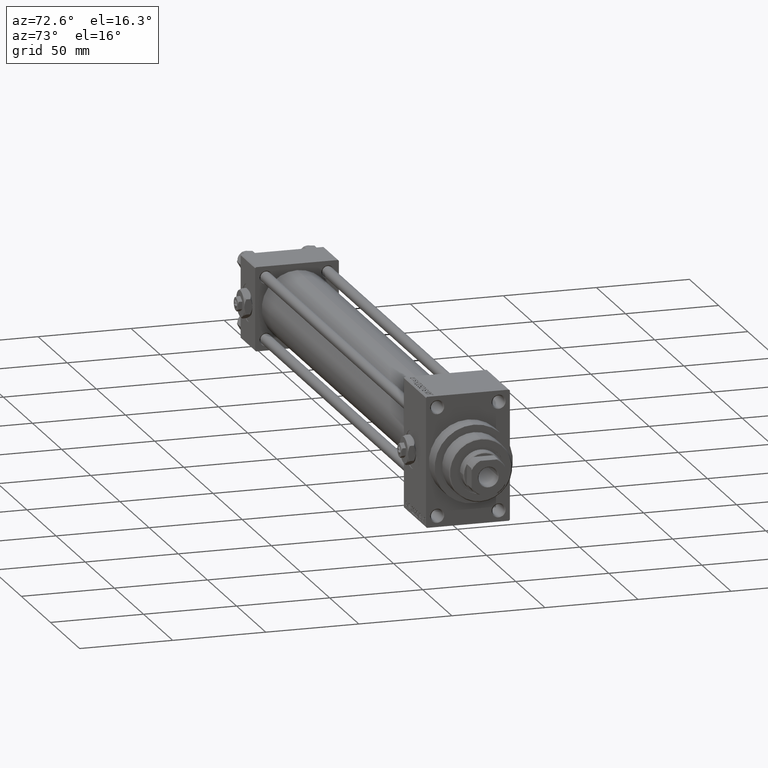
[diagram: clean part render]
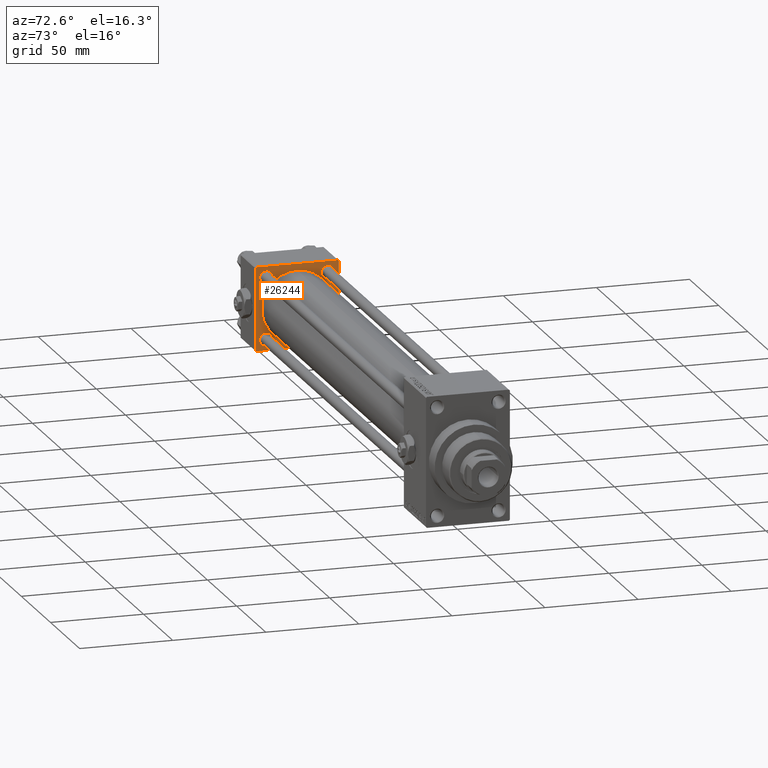
[diagram: same view with one face highlighted and labeled with its STEP entity id]
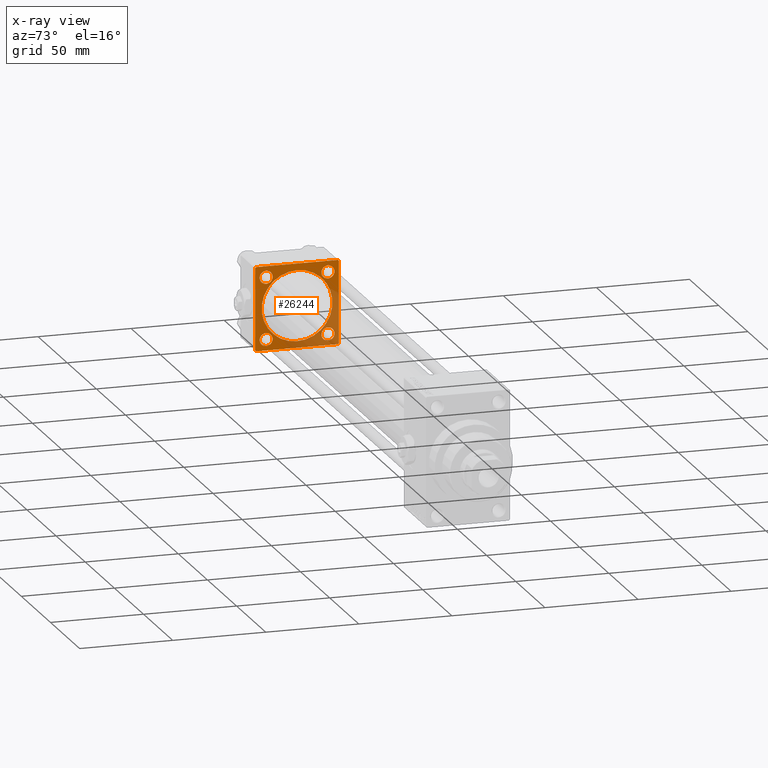
[diagram: x-ray of the same camera — body ghosted, the highlighted face saturated]
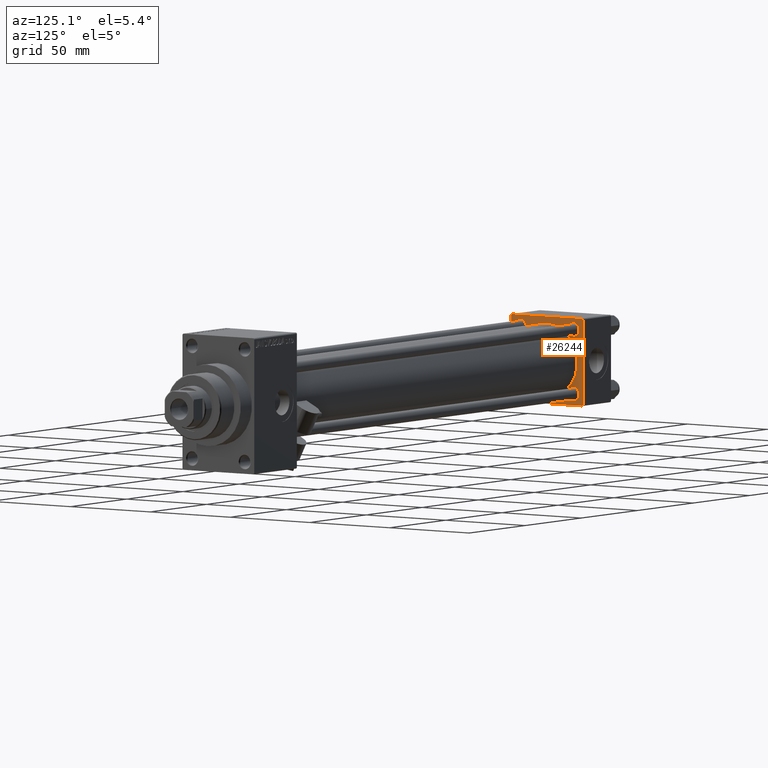
[diagram: same view with one face highlighted and labeled with its STEP entity id]
A machine part, auxiliary view. The second image highlights one B-rep face of the part: STEP entity #26244.
The next image is the same camera in x-ray: the body ghosted, the highlighted face saturated — about 31% of this face is hidden behind the body in this view.
A second angle (auxiliary view) of the same face is appended — the face is thin or edge-on in the first view.
In plain terms, the highlighted planar face has unit normal (-1, 0, 0).
Its self-contained STEP definition (entity closure, byte-faithful):
#134 = VERTEX_POINT ( 'NONE', #15946 ) ;
#157 = EDGE_CURVE ( 'NONE', #16758, #19918, #28928, .T. ) ;
#797 = VERTEX_POINT ( 'NONE', #18647 ) ;
#1250 = DIRECTION ( 'NONE',  ( -1.000000000000000000, 0.000000000000000000, -0.000000000000000000 ) ) ;
#1455 = DIRECTION ( 'NONE',  ( 0.000000000000000000, -1.000000000000000000, -7.709882115452476934E-17 ) ) ;
#1626 = EDGE_CURVE ( 'NONE', #134, #26587, #18532, .T. ) ;
#1653 = CIRCLE ( 'NONE', #40473, 19.00000000000000000 ) ;
#1986 = DIRECTION ( 'NONE',  ( -0.000000000000000000, -0.7071067811865525687, -0.7071067811865425767 ) ) ;
#2018 = VERTEX_POINT ( 'NONE', #29001 ) ;
#2794 = VECTOR ( 'NONE', #35277, 1000.000000000000000 ) ;
#3738 = CIRCLE ( 'NONE', #32857, 3.500000000000031086 ) ;
#3916 = DIRECTION ( 'NONE',  ( 0.000000000000000000, 0.000000000000000000, 1.000000000000000000 ) ) ;
#4302 = LINE ( 'NONE', #39487, #5395 ) ;
#4399 = LINE ( 'NONE', #19854, #2794 ) ;
#4921 = VECTOR ( 'NONE', #49488, 1000.000000000000000 ) ;
#5048 = VECTOR ( 'NONE', #27723, 1000.000000000000114 ) ;
#5395 = VECTOR ( 'NONE', #34693, 1000.000000000000000 ) ;
#5439 = ORIENTED_EDGE ( 'NONE', *, *, #157, .T. ) ;
#5827 = EDGE_CURVE ( 'NONE', #797, #24675, #30978, .T. ) ;
#6645 = FACE_BOUND ( 'NONE', #41038, .T. ) ;
#6818 = ORIENTED_EDGE ( 'NONE', *, *, #1626, .T. ) ;
#6915 = CARTESIAN_POINT ( 'NONE',  ( 25.00000000000000000, 16.59999999999999787, -16.60000000000000497 ) ) ;
#7119 = EDGE_LOOP ( 'NONE', ( #13506, #48507 ) ) ;
#7966 = ORIENTED_EDGE ( 'NONE', *, *, #20743, .T. ) ;
#8174 = DIRECTION ( 'NONE',  ( -1.000000000000000000, 0.000000000000000000, -0.000000000000000000 ) ) ;
#8878 = VERTEX_POINT ( 'NONE', #36213 ) ;
#8882 = VERTEX_POINT ( 'NONE', #9399 ) ;
#9399 = CARTESIAN_POINT ( 'NONE',  ( 25.00000000000000000, 16.59999999999999787, -13.09999999999997300 ) ) ;
#9410 = CARTESIAN_POINT ( 'NONE',  ( 25.00000000000000000, 22.50000000000000000, -21.99999999999996803 ) ) ;
#9763 = AXIS2_PLACEMENT_3D ( 'NONE', #6915, #42104, #38300 ) ;
#9835 = VERTEX_POINT ( 'NONE', #17129 ) ;
#9936 = AXIS2_PLACEMENT_3D ( 'NONE', #49864, #14655, #45289 ) ;
#10411 = EDGE_CURVE ( 'NONE', #37010, #47408, #28146, .T. ) ;
#10438 = EDGE_CURVE ( 'NONE', #26587, #134, #17087, .T. ) ;
#10465 = DIRECTION ( 'NONE',  ( -1.000000000000000000, 0.000000000000000000, -0.000000000000000000 ) ) ;
#10597 = DIRECTION ( 'NONE',  ( 0.000000000000000000, 0.000000000000000000, 1.000000000000000000 ) ) ;
#10716 = DIRECTION ( 'NONE',  ( -0.000000000000000000, 0.000000000000000000, 1.000000000000000000 ) ) ;
#11555 = ORIENTED_EDGE ( 'NONE', *, *, #35766, .T. ) ;
#11919 = CARTESIAN_POINT ( 'NONE',  ( 25.00000000000000000, 16.59999999999999787, 16.60000000000000497 ) ) ;
#12023 = CARTESIAN_POINT ( 'NONE',  ( 25.00000000000000000, 16.59999999999999787, -16.60000000000000497 ) ) ;
#13205 = VERTEX_POINT ( 'NONE', #43540 ) ;
#13324 = ORIENTED_EDGE ( 'NONE', *, *, #17932, .F. ) ;
#13506 = ORIENTED_EDGE ( 'NONE', *, *, #36958, .T. ) ;
#13510 = EDGE_CURVE ( 'NONE', #23965, #9835, #28501, .T. ) ;
#14655 = DIRECTION ( 'NONE',  ( -1.000000000000000000, 0.000000000000000000, -0.000000000000000000 ) ) ;
#14658 = VECTOR ( 'NONE', #1455, 1000.000000000000000 ) ;
#14670 = VECTOR ( 'NONE', #31201, 1000.000000000000000 ) ;
#14748 = FACE_BOUND ( 'NONE', #7119, .T. ) ;
#14888 = CARTESIAN_POINT ( 'NONE',  ( 25.00000000000000000, 16.59999999999999787, 16.60000000000000497 ) ) ;
#15530 = VERTEX_POINT ( 'NONE', #31334 ) ;
#15764 = CARTESIAN_POINT ( 'NONE',  ( 25.00000000000000000, 16.59999999999999787, 20.10000000000003340 ) ) ;
#15946 = CARTESIAN_POINT ( 'NONE',  ( 25.00000000000000000, -16.59999999999999076, 20.09999999999998721 ) ) ;
#16288 = AXIS2_PLACEMENT_3D ( 'NONE', #27401, #8174, #23618 ) ;
#16583 = CARTESIAN_POINT ( 'NONE',  ( 25.00000000000000000, 21.99999999999999289, 22.50000000000000355 ) ) ;
#16758 = VERTEX_POINT ( 'NONE', #20144 ) ;
#16830 = AXIS2_PLACEMENT_3D ( 'NONE', #11919, #1250, #31388 ) ;
#16833 = LINE ( 'NONE', #16583, #5048 ) ;
#17087 = CIRCLE ( 'NONE', #16288, 3.499999999999978684 ) ;
#17129 = CARTESIAN_POINT ( 'NONE',  ( 25.00000000000000000, -16.59999999999999076, -20.09999999999998366 ) ) ;
#17213 = DIRECTION ( 'NONE',  ( 0.000000000000000000, 0.000000000000000000, 1.000000000000000000 ) ) ;
#17697 = LINE ( 'NONE', #36664, #19078 ) ;
#17932 = EDGE_CURVE ( 'NONE', #37010, #24675, #4399, .T. ) ;
#18532 = CIRCLE ( 'NONE', #33030, 3.499999999999978684 ) ;
#18647 = CARTESIAN_POINT ( 'NONE',  ( 25.00000000000000000, -22.50000000000000000, -21.99999999999997158 ) ) ;
#18668 = CIRCLE ( 'NONE', #9763, 3.500000000000031086 ) ;
#19078 = VECTOR ( 'NONE', #1986, 999.9999999999998863 ) ;
#19544 = CIRCLE ( 'NONE', #33277, 19.00000000000000000 ) ;
#19854 = CARTESIAN_POINT ( 'NONE',  ( 25.00000000000000000, 22.50000000000000000, -22.49999999999999645 ) ) ;
#19918 = VERTEX_POINT ( 'NONE', #15764 ) ;
#20144 = CARTESIAN_POINT ( 'NONE',  ( 25.00000000000000000, 16.59999999999999787, 13.09999999999997300 ) ) ;
#20743 = EDGE_CURVE ( 'NONE', #8882, #8878, #21538, .T. ) ;
#21513 = ORIENTED_EDGE ( 'NONE', *, *, #21731, .T. ) ;
#21538 = CIRCLE ( 'NONE', #47383, 3.500000000000031086 ) ;
#21731 = EDGE_CURVE ( 'NONE', #32546, #35042, #17697, .T. ) ;
#21835 = EDGE_CURVE ( 'NONE', #19918, #16758, #3738, .T. ) ;
#22038 = ORIENTED_EDGE ( 'NONE', *, *, #36263, .T. ) ;
#22113 = FACE_OUTER_BOUND ( 'NONE', #30064, .T. ) ;
#22377 = DIRECTION ( 'NONE',  ( 1.000000000000000000, -0.000000000000000000, 0.000000000000000000 ) ) ;
#22615 = CARTESIAN_POINT ( 'NONE',  ( 25.00000000000002132, -2.602085213965210642E-15, 0.000000000000000000 ) ) ;
#23036 = ORIENTED_EDGE ( 'NONE', *, *, #42861, .F. ) ;
#23618 = DIRECTION ( 'NONE',  ( 0.000000000000000000, 0.000000000000000000, 1.000000000000000000 ) ) ;
#23965 = VERTEX_POINT ( 'NONE', #47307 ) ;
#24048 = DIRECTION ( 'NONE',  ( 0.000000000000000000, 0.000000000000000000, 1.000000000000000000 ) ) ;
#24362 = CARTESIAN_POINT ( 'NONE',  ( 25.00000000000000000, 22.50000000000000000, -21.99999999999998224 ) ) ;
#24675 = VERTEX_POINT ( 'NONE', #30616 ) ;
#26244 = ADVANCED_FACE ( 'NONE', ( #14748, #30190, #45130, #30444, #6645, #22113 ), #26654, .F. ) ;
#26398 = EDGE_CURVE ( 'NONE', #39403, #47408, #4302, .T. ) ;
#26468 = DIRECTION ( 'NONE',  ( -1.000000000000000000, 0.000000000000000000, -0.000000000000000000 ) ) ;
#26587 = VERTEX_POINT ( 'NONE', #47351 ) ;
#26654 = PLANE ( 'NONE',  #43386 ) ;
#27252 = ORIENTED_EDGE ( 'NONE', *, *, #26398, .F. ) ;
#27401 = CARTESIAN_POINT ( 'NONE',  ( 25.00000000000000000, -16.59999999999999076, 16.60000000000000853 ) ) ;
#27723 = DIRECTION ( 'NONE',  ( 0.000000000000000000, -0.7071067811865474617, 0.7071067811865474617 ) ) ;
#28057 = LINE ( 'NONE', #32840, #14658 ) ;
#28146 = LINE ( 'NONE', #24362, #14670 ) ;
#28350 = CARTESIAN_POINT ( 'NONE',  ( 25.00000000000000000, -16.59999999999999076, -16.60000000000000853 ) ) ;
#28501 = CIRCLE ( 'NONE', #9936, 3.499999999999975131 ) ;
#28928 = CIRCLE ( 'NONE', #16830, 3.500000000000031086 ) ;
#28954 = CARTESIAN_POINT ( 'NONE',  ( 25.00000000000000000, -22.50000000000000000, 22.50000000000000000 ) ) ;
#29001 = CARTESIAN_POINT ( 'NONE',  ( 25.00000000000002132, -2.752562955852396712E-16, -19.00000000000000000 ) ) ;
#29205 = LINE ( 'NONE', #28954, #46172 ) ;
#29569 = CARTESIAN_POINT ( 'NONE',  ( 25.00000000000000000, -16.59999999999999076, 16.60000000000000853 ) ) ;
#30064 = EDGE_LOOP ( 'NONE', ( #13324, #35780, #27252, #22038, #44372, #21513, #37269, #47606 ) ) ;
#30190 = FACE_BOUND ( 'NONE', #34363, .T. ) ;
#30444 = FACE_BOUND ( 'NONE', #49309, .T. ) ;
#30616 = CARTESIAN_POINT ( 'NONE',  ( 25.00000000000000000, -21.99999999999997158, -22.50000000000000711 ) ) ;
#30978 = LINE ( 'NONE', #49743, #4921 ) ;
#31201 = DIRECTION ( 'NONE',  ( -0.000000000000000000, 0.7071067811865426878, 0.7071067811865524577 ) ) ;
#31334 = CARTESIAN_POINT ( 'NONE',  ( 25.00000000000002132, -2.602085213965210642E-15, 19.00000000000000000 ) ) ;
#31377 = CARTESIAN_POINT ( 'NONE',  ( 25.00000000000000000, -22.50000000000000000, 22.00000000000000000 ) ) ;
#31388 = DIRECTION ( 'NONE',  ( 0.000000000000000000, 0.000000000000000000, 1.000000000000000000 ) ) ;
#31419 = ORIENTED_EDGE ( 'NONE', *, *, #10438, .T. ) ;
#31955 = EDGE_LOOP ( 'NONE', ( #31419, #6818 ) ) ;
#32546 = VERTEX_POINT ( 'NONE', #42504 ) ;
#32840 = CARTESIAN_POINT ( 'NONE',  ( 25.00000000000000000, 22.50000000000000000, 22.50000000000000355 ) ) ;
#32857 = AXIS2_PLACEMENT_3D ( 'NONE', #14888, #41218, #37918 ) ;
#32885 = CARTESIAN_POINT ( 'NONE',  ( 25.00000000000000000, 21.99999999999999289, -22.49999999999999645 ) ) ;
#33030 = AXIS2_PLACEMENT_3D ( 'NONE', #29569, #40698, #37149 ) ;
#33277 = AXIS2_PLACEMENT_3D ( 'NONE', #37150, #44755, #10597 ) ;
#34363 = EDGE_LOOP ( 'NONE', ( #11555, #7966 ) ) ;
#34693 = DIRECTION ( 'NONE',  ( 0.000000000000000000, 0.000000000000000000, -1.000000000000000000 ) ) ;
#34974 = CIRCLE ( 'NONE', #41448, 3.499999999999975131 ) ;
#35042 = VERTEX_POINT ( 'NONE', #31377 ) ;
#35277 = DIRECTION ( 'NONE',  ( 0.000000000000000000, -1.000000000000000000, -2.312964634635742957E-16 ) ) ;
#35766 = EDGE_CURVE ( 'NONE', #8878, #8882, #18668, .T. ) ;
#35780 = ORIENTED_EDGE ( 'NONE', *, *, #10411, .T. ) ;
#36213 = CARTESIAN_POINT ( 'NONE',  ( 25.00000000000000000, 16.59999999999999787, -20.10000000000003340 ) ) ;
#36263 = EDGE_CURVE ( 'NONE', #39403, #13205, #16833, .T. ) ;
#36664 = CARTESIAN_POINT ( 'NONE',  ( 25.00000000000000000, -22.50000000000000000, 22.00000000000000000 ) ) ;
#36958 = EDGE_CURVE ( 'NONE', #9835, #23965, #34974, .T. ) ;
#37010 = VERTEX_POINT ( 'NONE', #32885 ) ;
#37149 = DIRECTION ( 'NONE',  ( 0.000000000000000000, 0.000000000000000000, 1.000000000000000000 ) ) ;
#37150 = CARTESIAN_POINT ( 'NONE',  ( 25.00000000000002132, -2.602085213965210642E-15, 0.000000000000000000 ) ) ;
#37269 = ORIENTED_EDGE ( 'NONE', *, *, #41540, .T. ) ;
#37918 = DIRECTION ( 'NONE',  ( 0.000000000000000000, 0.000000000000000000, 1.000000000000000000 ) ) ;
#38300 = DIRECTION ( 'NONE',  ( 0.000000000000000000, 0.000000000000000000, 1.000000000000000000 ) ) ;
#38596 = EDGE_CURVE ( 'NONE', #13205, #32546, #28057, .T. ) ;
#39403 = VERTEX_POINT ( 'NONE', #46257 ) ;
#39487 = CARTESIAN_POINT ( 'NONE',  ( 25.00000000000000000, 22.50000000000000000, 22.50000000000000355 ) ) ;
#40473 = AXIS2_PLACEMENT_3D ( 'NONE', #22615, #22377, #24048 ) ;
#40698 = DIRECTION ( 'NONE',  ( -1.000000000000000000, 0.000000000000000000, -0.000000000000000000 ) ) ;
#40774 = EDGE_CURVE ( 'NONE', #2018, #15530, #1653, .T. ) ;
#41038 = EDGE_LOOP ( 'NONE', ( #23036, #41296 ) ) ;
#41218 = DIRECTION ( 'NONE',  ( -1.000000000000000000, 0.000000000000000000, -0.000000000000000000 ) ) ;
#41296 = ORIENTED_EDGE ( 'NONE', *, *, #40774, .F. ) ;
#41448 = AXIS2_PLACEMENT_3D ( 'NONE', #28350, #44285, #17213 ) ;
#41540 = EDGE_CURVE ( 'NONE', #35042, #797, #29205, .T. ) ;
#41572 = ORIENTED_EDGE ( 'NONE', *, *, #21835, .T. ) ;
#42104 = DIRECTION ( 'NONE',  ( -1.000000000000000000, 0.000000000000000000, -0.000000000000000000 ) ) ;
#42504 = CARTESIAN_POINT ( 'NONE',  ( 25.00000000000000000, -21.99999999999997868, 22.50000000000000000 ) ) ;
#42861 = EDGE_CURVE ( 'NONE', #15530, #2018, #19544, .T. ) ;
#43386 = AXIS2_PLACEMENT_3D ( 'NONE', #49707, #10465, #10716 ) ;
#43540 = CARTESIAN_POINT ( 'NONE',  ( 25.00000000000000000, 21.99999999999999289, 22.50000000000000355 ) ) ;
#44285 = DIRECTION ( 'NONE',  ( -1.000000000000000000, 0.000000000000000000, -0.000000000000000000 ) ) ;
#44372 = ORIENTED_EDGE ( 'NONE', *, *, #38596, .T. ) ;
#44755 = DIRECTION ( 'NONE',  ( 1.000000000000000000, -0.000000000000000000, 0.000000000000000000 ) ) ;
#45130 = FACE_BOUND ( 'NONE', #31955, .T. ) ;
#45149 = DIRECTION ( 'NONE',  ( 0.000000000000000000, 0.000000000000000000, -1.000000000000000000 ) ) ;
#45289 = DIRECTION ( 'NONE',  ( 0.000000000000000000, 0.000000000000000000, 1.000000000000000000 ) ) ;
#46172 = VECTOR ( 'NONE', #45149, 1000.000000000000000 ) ;
#46257 = CARTESIAN_POINT ( 'NONE',  ( 25.00000000000000000, 22.50000000000000000, 21.99999999999999645 ) ) ;
#47307 = CARTESIAN_POINT ( 'NONE',  ( 25.00000000000000000, -16.59999999999999076, -13.10000000000003162 ) ) ;
#47351 = CARTESIAN_POINT ( 'NONE',  ( 25.00000000000000000, -16.59999999999999076, 13.10000000000002807 ) ) ;
#47383 = AXIS2_PLACEMENT_3D ( 'NONE', #12023, #26468, #3916 ) ;
#47408 = VERTEX_POINT ( 'NONE', #9410 ) ;
#47606 = ORIENTED_EDGE ( 'NONE', *, *, #5827, .T. ) ;
#48507 = ORIENTED_EDGE ( 'NONE', *, *, #13510, .T. ) ;
#49309 = EDGE_LOOP ( 'NONE', ( #5439, #41572 ) ) ;
#49488 = DIRECTION ( 'NONE',  ( 0.000000000000000000, 0.7071067811865426878, -0.7071067811865524577 ) ) ;
#49707 = CARTESIAN_POINT ( 'NONE',  ( 25.00000000000000000, 0.000000000000000000, 0.000000000000000000 ) ) ;
#49743 = CARTESIAN_POINT ( 'NONE',  ( 25.00000000000000000, -21.99999999999998579, -22.50000000000000711 ) ) ;
#49864 = CARTESIAN_POINT ( 'NONE',  ( 25.00000000000000000, -16.59999999999999076, -16.60000000000000853 ) ) ;